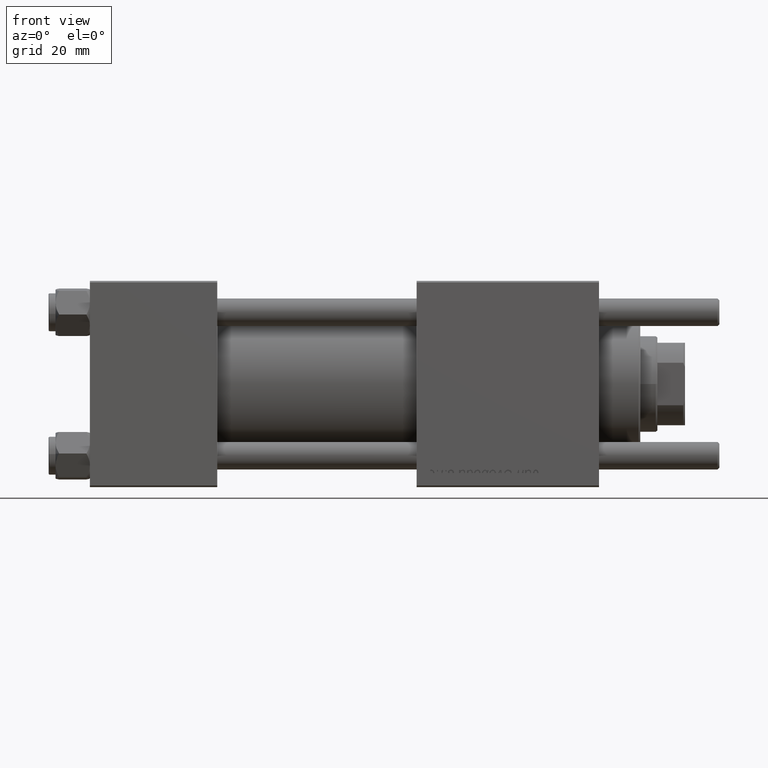
[diagram: clean part render]
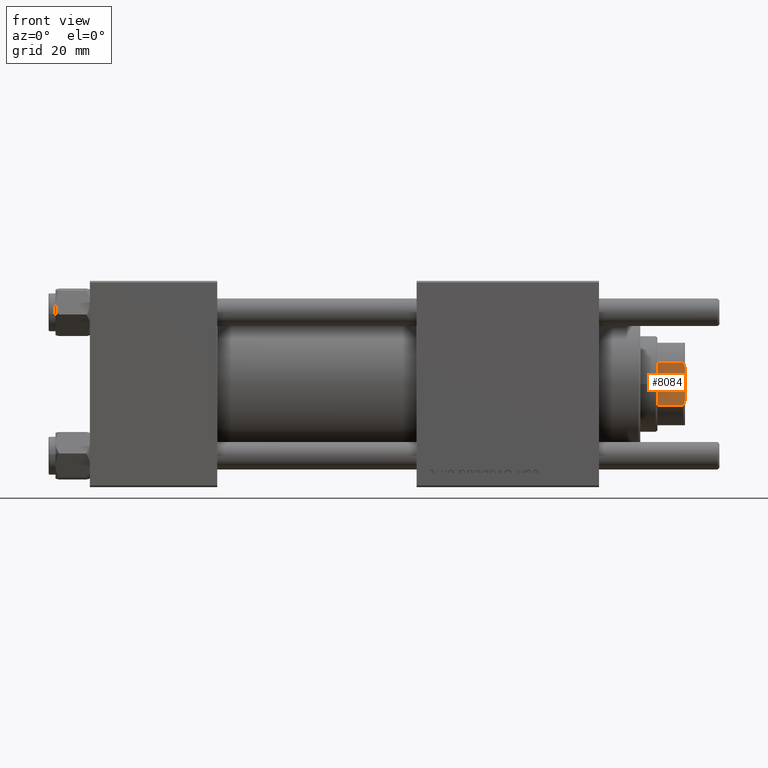
[diagram: same view with one face highlighted and labeled with its STEP entity id]
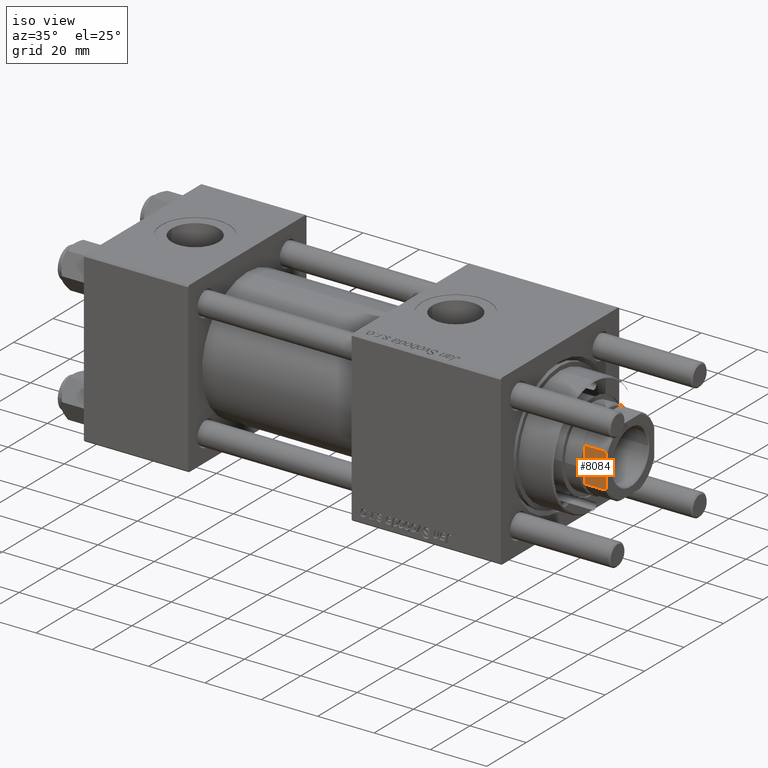
[diagram: same view with one face highlighted and labeled with its STEP entity id]
A machine part, front view. The second image highlights one B-rep face of the part: STEP entity #8084.
A second angle (iso view) of the same face is appended — the face is thin or edge-on in the first view.
In plain terms, the highlighted planar face has unit normal (0, 1, 0).
Its self-contained STEP definition (entity closure, byte-faithful):
#235 = DIRECTION ( 'NONE',  ( -0.000000000000000000, -0.000000000000000000, 1.000000000000000000 ) ) ;
#1132 = EDGE_CURVE ( 'NONE', #7847, #53522, #14339, .T. ) ;
#1334 = CARTESIAN_POINT ( 'NONE',  ( 11.99999999999999645, 6.184658438426496652, 135.5000000000000284 ) ) ;
#2324 = CARTESIAN_POINT ( 'NONE',  ( 11.99999999999999822, 5.000000000000037303, 136.0000000000000000 ) ) ;
#3910 = VERTEX_POINT ( 'NONE', #47063 ) ;
#4886 = EDGE_CURVE ( 'NONE', #11878, #35634, #51965, .T. ) ;
#6930 = CARTESIAN_POINT ( 'NONE',  ( 11.99999999999999822, 5.400255697127821719, 135.8460555011047006 ) ) ;
#7847 = VERTEX_POINT ( 'NONE', #1334 ) ;
#8084 = ADVANCED_FACE ( 'NONE', ( #46272 ), #32432, .F. ) ;
#10771 = EDGE_CURVE ( 'NONE', #11878, #53522, #42838, .T. ) ;
#11344 = CARTESIAN_POINT ( 'NONE',  ( 11.99999999999999467, -6.184658438426501981, 135.5000000000000284 ) ) ;
#11399 = EDGE_LOOP ( 'NONE', ( #26622, #27766, #47897, #29721, #51395, #51623 ) ) ;
#11878 = VERTEX_POINT ( 'NONE', #46751 ) ;
#12457 = CARTESIAN_POINT ( 'NONE',  ( 12.00000000000000178, -5.794808544282264329, 135.6785991435214385 ) ) ;
#12710 = EDGE_CURVE ( 'NONE', #3910, #30762, #32437, .T. ) ;
#14339 = B_SPLINE_CURVE_WITH_KNOTS ( 'NONE', 3,
 ( #42071, #24202, #6930, #2324 ),
 .UNSPECIFIED., .F., .F.,
 ( 4, 4 ),
 ( 0.000000000000000000, 0.001285852097146085102 ),
 .UNSPECIFIED. ) ;
#14566 = VECTOR ( 'NONE', #31588, 1000.000000000000000 ) ;
#17659 = CARTESIAN_POINT ( 'NONE',  ( 11.99999999999999645, 6.184658438426496652, 128.0000000000000853 ) ) ;
#17719 = VECTOR ( 'NONE', #20928, 1000.000000000000000 ) ;
#20928 = DIRECTION ( 'NONE',  ( -0.000000000000000000, -0.000000000000000000, 1.000000000000000000 ) ) ;
#23251 = VECTOR ( 'NONE', #235, 1000.000000000000000 ) ;
#24202 = CARTESIAN_POINT ( 'NONE',  ( 11.99999999999999645, 5.794808544282254559, 135.6785991435214385 ) ) ;
#24345 = CARTESIAN_POINT ( 'NONE',  ( 11.99999999999999645, 11.99999999999999645, 136.0000000000000000 ) ) ;
#24919 = DIRECTION ( 'NONE',  ( -1.000000000000000000, -2.891205793294678326E-16, 0.000000000000000000 ) ) ;
#25515 = LINE ( 'NONE', #30414, #17719 ) ;
#26622 = ORIENTED_EDGE ( 'NONE', *, *, #53603, .T. ) ;
#27766 = ORIENTED_EDGE ( 'NONE', *, *, #1132, .T. ) ;
#29284 = CARTESIAN_POINT ( 'NONE',  ( 11.99999999999999822, 5.000000000000037303, 136.0000000000000000 ) ) ;
#29721 = ORIENTED_EDGE ( 'NONE', *, *, #4886, .T. ) ;
#30414 = CARTESIAN_POINT ( 'NONE',  ( 11.99999999999999645, 6.184658438426496652, -0.001000000000001000089 ) ) ;
#30762 = VERTEX_POINT ( 'NONE', #17659 ) ;
#31588 = DIRECTION ( 'NONE',  ( -2.891205793294678326E-16, 1.000000000000000000, -0.000000000000000000 ) ) ;
#32432 = PLANE ( 'NONE',  #32988 ) ;
#32437 = LINE ( 'NONE', #44841, #14566 ) ;
#32988 = AXIS2_PLACEMENT_3D ( 'NONE', #24345, #24919, #41363 ) ;
#35634 = VERTEX_POINT ( 'NONE', #39437 ) ;
#38394 = CARTESIAN_POINT ( 'NONE',  ( 12.00000000000000178, -5.000000000000056843, 136.0000000000000000 ) ) ;
#39437 = CARTESIAN_POINT ( 'NONE',  ( 11.99999999999999467, -6.184658438426501981, 135.5000000000000284 ) ) ;
#41363 = DIRECTION ( 'NONE',  ( 2.891205793294678326E-16, -1.000000000000000000, 0.000000000000000000 ) ) ;
#42071 = CARTESIAN_POINT ( 'NONE',  ( 11.99999999999999645, 6.184658438426496652, 135.5000000000000284 ) ) ;
#42838 = LINE ( 'NONE', #51492, #55984 ) ;
#43179 = LINE ( 'NONE', #48332, #23251 ) ;
#44841 = CARTESIAN_POINT ( 'NONE',  ( 11.99999999999999645, 11.99999999999999645, 128.0000000000000000 ) ) ;
#46272 = FACE_OUTER_BOUND ( 'NONE', #11399, .T. ) ;
#46751 = CARTESIAN_POINT ( 'NONE',  ( 12.00000000000000178, -5.000000000000056843, 136.0000000000000000 ) ) ;
#47063 = CARTESIAN_POINT ( 'NONE',  ( 11.99999999999999467, -6.184658438426501981, 128.0000000000000853 ) ) ;
#47897 = ORIENTED_EDGE ( 'NONE', *, *, #10771, .F. ) ;
#48332 = CARTESIAN_POINT ( 'NONE',  ( 11.99999999999999467, -6.184658438426501981, -0.001000000000001000089 ) ) ;
#51395 = ORIENTED_EDGE ( 'NONE', *, *, #52588, .F. ) ;
#51492 = CARTESIAN_POINT ( 'NONE',  ( 11.99999999999999645, 11.99999999999999645, 136.0000000000000000 ) ) ;
#51623 = ORIENTED_EDGE ( 'NONE', *, *, #12710, .T. ) ;
#51965 = B_SPLINE_CURVE_WITH_KNOTS ( 'NONE', 3,
 ( #38394, #55994, #12457, #11344 ),
 .UNSPECIFIED., .F., .F.,
 ( 4, 4 ),
 ( 8.673617379884035472E-19, 0.001285852097146073176 ),
 .UNSPECIFIED. ) ;
#52327 = DIRECTION ( 'NONE',  ( -2.891205793294678326E-16, 1.000000000000000000, -0.000000000000000000 ) ) ;
#52588 = EDGE_CURVE ( 'NONE', #3910, #35634, #43179, .T. ) ;
#53522 = VERTEX_POINT ( 'NONE', #29284 ) ;
#53603 = EDGE_CURVE ( 'NONE', #30762, #7847, #25515, .T. ) ;
#55984 = VECTOR ( 'NONE', #52327, 1000.000000000000000 ) ;
#55994 = CARTESIAN_POINT ( 'NONE',  ( 12.00000000000000178, -5.400255697127827936, 135.8460555011047006 ) ) ;